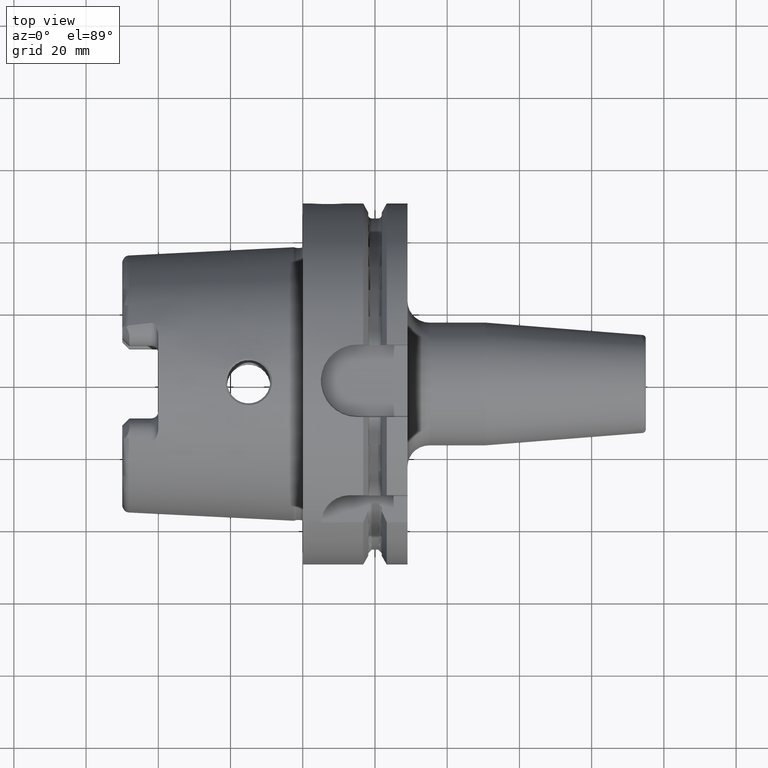
[diagram: clean part render]
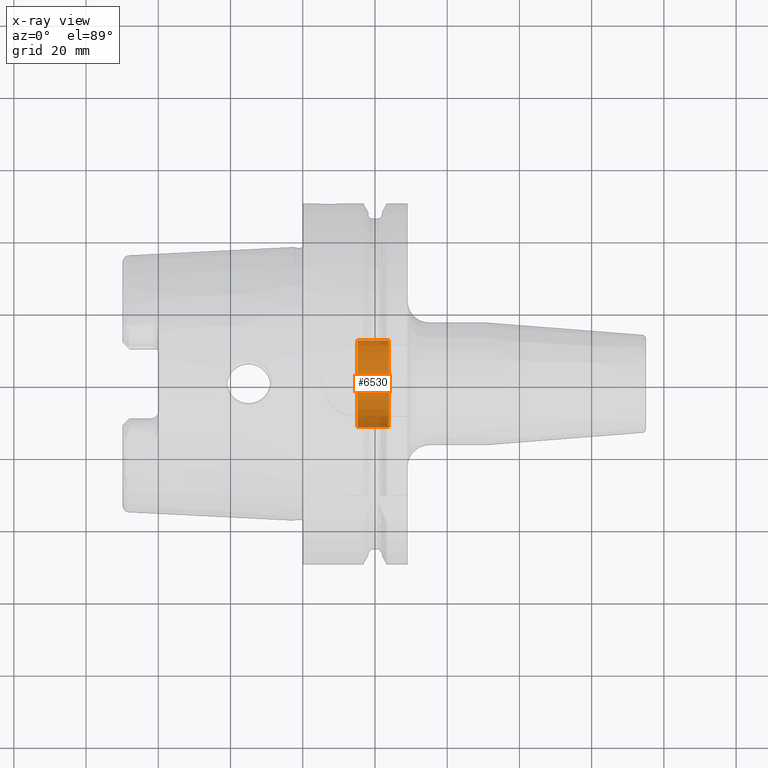
[diagram: x-ray — body ghosted, one internal face saturated and labeled with its STEP entity id]
A machine part, top view, then the same camera in x-ray: the body is ghosted and one INTERNAL B-rep face — a face not visible from any outside direction — is saturated and labeled: STEP entity #6530.
In plain terms, the highlighted cylindrical surface (partial cylindrical patch) has radius 12 mm, axis along (1, 0, 0).
Its self-contained STEP definition (entity closure, byte-faithful):
#6443=CARTESIAN_POINT('',(1.51625E1,0.E0,0.E0));
#6444=DIRECTION('',(1.E0,0.E0,0.E0));
#6445=DIRECTION('',(0.E0,-1.E0,0.E0));
#6446=AXIS2_PLACEMENT_3D('',#6443,#6444,#6445);
#6448=CARTESIAN_POINT('',(2.385262794416E1,0.E0,0.E0));
#6449=DIRECTION('',(-1.E0,0.E0,0.E0));
#6450=DIRECTION('',(0.E0,1.E0,0.E0));
#6451=AXIS2_PLACEMENT_3D('',#6448,#6449,#6450);
#6468=DIRECTION('',(-1.E0,0.E0,0.E0));
#6469=VECTOR('',#6468,8.690127944163E0);
#6470=CARTESIAN_POINT('',(2.385262794416E1,-1.2E1,0.E0));
#6471=LINE('',#6470,#6469);
#6477=DIRECTION('',(-1.E0,0.E0,0.E0));
#6478=VECTOR('',#6477,8.690127944163E0);
#6479=CARTESIAN_POINT('',(2.385262794416E1,1.2E1,0.E0));
#6480=LINE('',#6479,#6478);
#6503=CARTESIAN_POINT('',(1.51625E1,-1.2E1,0.E0));
#6504=CARTESIAN_POINT('',(1.51625E1,1.2E1,0.E0));
#6505=VERTEX_POINT('',#6503);
#6506=VERTEX_POINT('',#6504);
#6507=CARTESIAN_POINT('',(2.385262794416E1,-1.2E1,0.E0));
#6508=CARTESIAN_POINT('',(2.385262794416E1,1.2E1,0.E0));
#6509=VERTEX_POINT('',#6507);
#6510=VERTEX_POINT('',#6508);
#6515=CARTESIAN_POINT('',(-4.847666062263E0,0.E0,0.E0));
#6516=DIRECTION('',(1.E0,0.E0,0.E0));
#6517=DIRECTION('',(0.E0,-1.E0,0.E0));
#6518=AXIS2_PLACEMENT_3D('',#6515,#6516,#6517);
#6519=CYLINDRICAL_SURFACE('',#6518,1.2E1);
#6521=ORIENTED_EDGE('',*,*,#6520,.T.);
#6523=ORIENTED_EDGE('',*,*,#6522,.F.);
#6525=ORIENTED_EDGE('',*,*,#6524,.T.);
#6527=ORIENTED_EDGE('',*,*,#6526,.T.);
#6528=EDGE_LOOP('',(#6521,#6523,#6525,#6527));
#6529=FACE_OUTER_BOUND('',#6528,.F.);
#6530=ADVANCED_FACE('',(#6529),#6519,.F.);
#6447=CIRCLE('',#6446,1.2E1);
#6452=CIRCLE('',#6451,1.2E1);
#6520=EDGE_CURVE('',#6505,#6506,#6447,.T.);
#6522=EDGE_CURVE('',#6510,#6506,#6480,.T.);
#6524=EDGE_CURVE('',#6510,#6509,#6452,.T.);
#6526=EDGE_CURVE('',#6509,#6505,#6471,.T.);